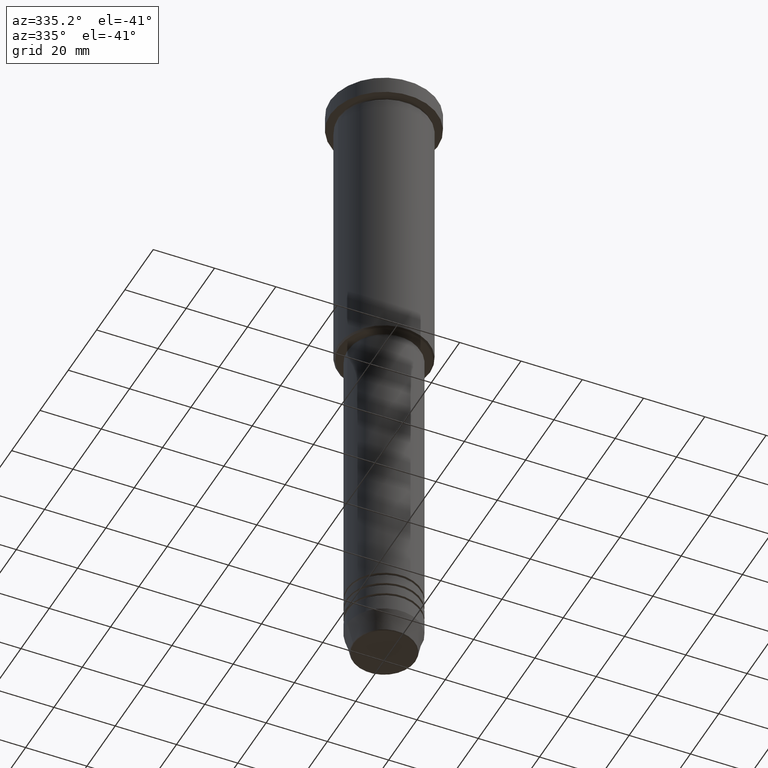
[diagram: clean part render]
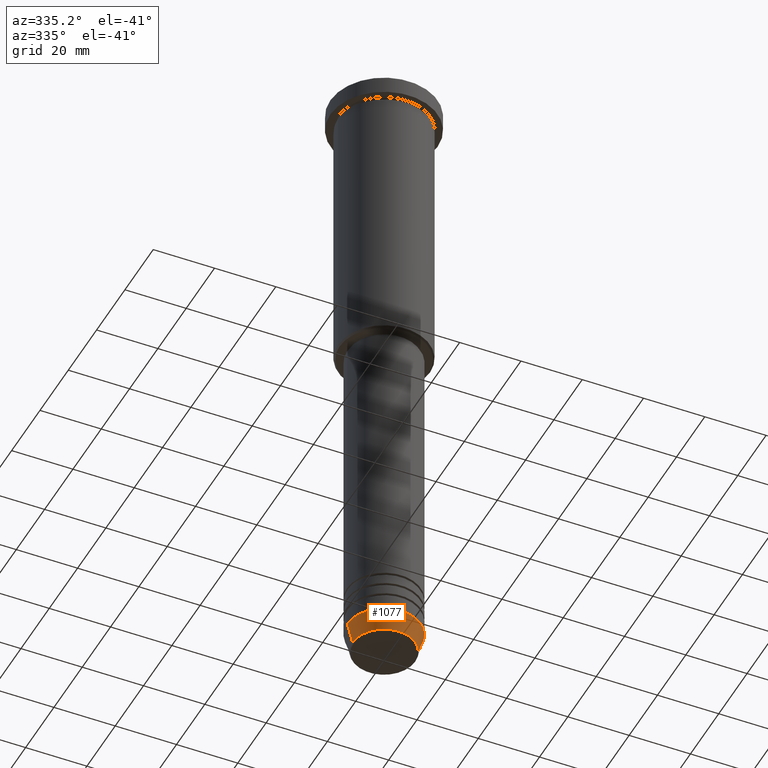
[diagram: same view with one face highlighted and labeled with its STEP entity id]
A machine part, auxiliary view. The second image highlights one B-rep face of the part: STEP entity #1077.
In plain terms, the highlighted conical surface has half-angle 15 deg.
Its self-contained STEP definition (entity closure, byte-faithful):
#120 = DIRECTION ( 'NONE',  ( -0.2588190451025213501, 3.169619151431772337E-17, 0.9659258262890680902 ) ) ;
#143 = VECTOR ( 'NONE', #120, 1000.000000000000000 ) ;
#148 = AXIS2_PLACEMENT_3D ( 'NONE', #296, #749, #289 ) ;
#151 = CARTESIAN_POINT ( 'NONE',  ( 0.000000000000000000, 0.000000000000000000, -210.6294095225512706 ) ) ;
#167 = CARTESIAN_POINT ( 'NONE',  ( 12.00000000000000000, 0.000000000000000000, -204.0000000000000284 ) ) ;
#177 = VERTEX_POINT ( 'NONE', #1143 ) ;
#204 = VERTEX_POINT ( 'NONE', #967 ) ;
#215 = CARTESIAN_POINT ( 'NONE',  ( -10.22365507213719127, 1.360806402472382744E-15, -210.6294095225512706 ) ) ;
#220 = CONICAL_SURFACE ( 'NONE', #577, 12.00000000000000000, 0.2617993877991500740 ) ;
#237 = DIRECTION ( 'NONE',  ( -0.000000000000000000, -0.000000000000000000, 1.000000000000000000 ) ) ;
#271 = AXIS2_PLACEMENT_3D ( 'NONE', #151, #716, #277 ) ;
#277 = DIRECTION ( 'NONE',  ( 1.000000000000000000, 0.000000000000000000, 0.000000000000000000 ) ) ;
#289 = DIRECTION ( 'NONE',  ( 1.000000000000000000, 0.000000000000000000, 0.000000000000000000 ) ) ;
#296 = CARTESIAN_POINT ( 'NONE',  ( 0.000000000000000000, 0.000000000000000000, -204.0000000000000284 ) ) ;
#322 = FACE_OUTER_BOUND ( 'NONE', #467, .T. ) ;
#328 = DIRECTION ( 'NONE',  ( 1.000000000000000000, 0.000000000000000000, 0.000000000000000000 ) ) ;
#384 = EDGE_CURVE ( 'NONE', #1175, #204, #662, .T. ) ;
#404 = CIRCLE ( 'NONE', #271, 10.22365507213719127 ) ;
#416 = LINE ( 'NONE', #167, #842 ) ;
#467 = EDGE_LOOP ( 'NONE', ( #936, #799, #694, #947 ) ) ;
#568 = CARTESIAN_POINT ( 'NONE',  ( -12.00000000000000000, 1.469576158976823947E-15, -204.0000000000000284 ) ) ;
#577 = AXIS2_PLACEMENT_3D ( 'NONE', #857, #237, #328 ) ;
#579 = EDGE_CURVE ( 'NONE', #1175, #177, #404, .T. ) ;
#662 = LINE ( 'NONE', #568, #143 ) ;
#694 = ORIENTED_EDGE ( 'NONE', *, *, #778, .T. ) ;
#716 = DIRECTION ( 'NONE',  ( -0.000000000000000000, -0.000000000000000000, 1.000000000000000000 ) ) ;
#749 = DIRECTION ( 'NONE',  ( -0.000000000000000000, -0.000000000000000000, 1.000000000000000000 ) ) ;
#769 = VERTEX_POINT ( 'NONE', #1060 ) ;
#778 = EDGE_CURVE ( 'NONE', #177, #769, #416, .T. ) ;
#799 = ORIENTED_EDGE ( 'NONE', *, *, #579, .T. ) ;
#842 = VECTOR ( 'NONE', #1169, 1000.000000000000000 ) ;
#857 = CARTESIAN_POINT ( 'NONE',  ( 0.000000000000000000, 0.000000000000000000, -204.0000000000000284 ) ) ;
#936 = ORIENTED_EDGE ( 'NONE', *, *, #384, .F. ) ;
#947 = ORIENTED_EDGE ( 'NONE', *, *, #1177, .F. ) ;
#967 = CARTESIAN_POINT ( 'NONE',  ( -12.00000000000000000, 1.469576158976823947E-15, -204.0000000000000284 ) ) ;
#981 = CIRCLE ( 'NONE', #148, 12.00000000000000000 ) ;
#1060 = CARTESIAN_POINT ( 'NONE',  ( 12.00000000000000000, 0.000000000000000000, -204.0000000000000284 ) ) ;
#1077 = ADVANCED_FACE ( 'NONE', ( #322 ), #220, .T. ) ;
#1143 = CARTESIAN_POINT ( 'NONE',  ( 10.22365507213719127, 0.000000000000000000, -210.6294095225512706 ) ) ;
#1169 = DIRECTION ( 'NONE',  ( 0.2588190451025213501, 0.000000000000000000, 0.9659258262890680902 ) ) ;
#1175 = VERTEX_POINT ( 'NONE', #215 ) ;
#1177 = EDGE_CURVE ( 'NONE', #204, #769, #981, .T. ) ;